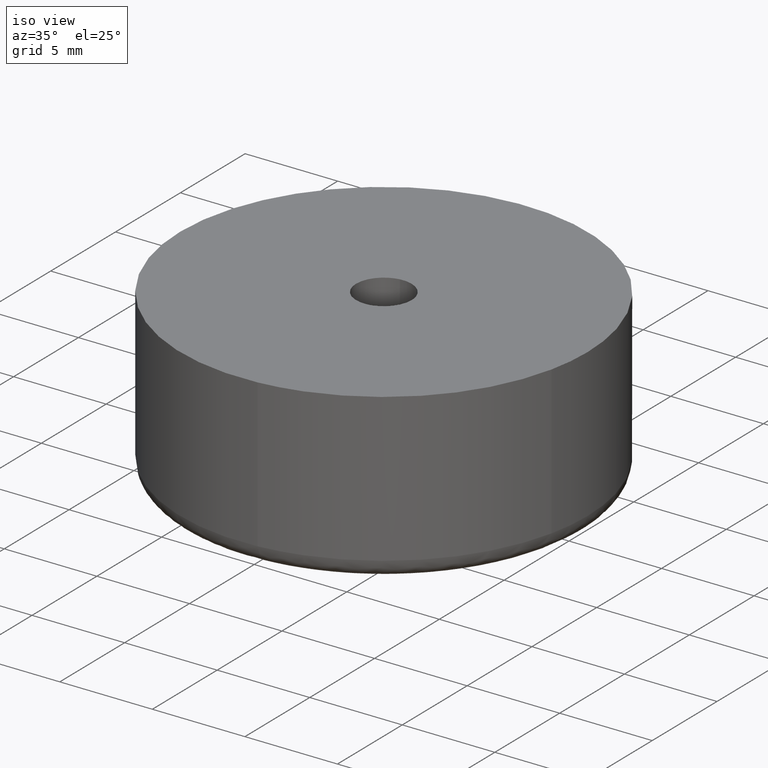
[diagram: clean part render]
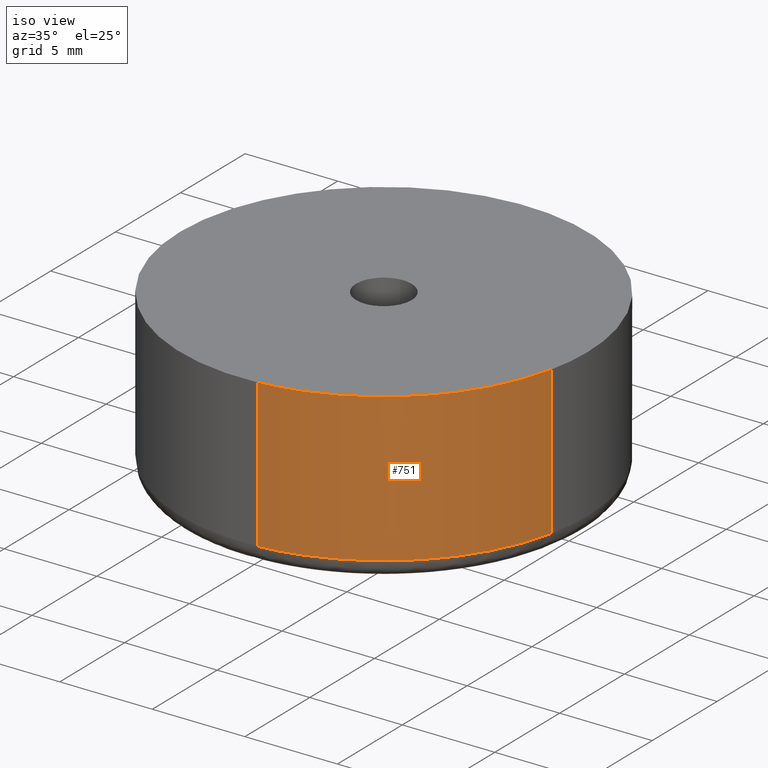
[diagram: same view with one face highlighted and labeled with its STEP entity id]
A machine part, iso view. The second image highlights one B-rep face of the part: STEP entity #751.
In plain terms, the highlighted face is a freeform B-spline surface patch.
Its self-contained STEP definition (entity closure, byte-faithful):
#687=CARTESIAN_POINT('',(10.750597686837729,-2.330096578054378,9.200000000002461));
#688=CARTESIAN_POINT('',(10.743133350859535,-2.363527617774746,9.200000000002461));
#689=CARTESIAN_POINT('',(8.964755347584941,-10.328472636191016,9.200000000002461));
#690=CARTESIAN_POINT('',(0.832066343852315,-10.968529141858580,9.200000000002461));
#691=CARTESIAN_POINT('',(0.801155071843279,-10.970961911725817,9.200000000002467));
#692=CARTESIAN_POINT('',(10.750597686837729,-2.330096578054378,0.794999999894772));
#693=CARTESIAN_POINT('',(10.743133350859535,-2.363527617774746,0.794999999894772));
#694=CARTESIAN_POINT('',(8.964755347584941,-10.328472636191016,0.794999999894772));
#695=CARTESIAN_POINT('',(0.832066343852315,-10.968529141858580,0.794999999894772));
#696=CARTESIAN_POINT('',(0.801155071843279,-10.970961911725817,0.794999999894773));
#704=(BOUNDED_SURFACE()B_SPLINE_SURFACE(2,1,((#687,#692),(#688,#693),(#689,#694),(#690,#695),(#691,#696)),.UNSPECIFIED.,.F.,.F.,.U.)B_SPLINE_SURFACE_WITH_KNOTS((3,1,1,3),(2,2),(0.0,0.072412327815061,14.553348290568170,14.625760497079630),(0.0,8.405000000107691),.UNSPECIFIED.)GEOMETRIC_REPRESENTATION_ITEM()RATIONAL_B_SPLINE_SURFACE(((0.907680205931852,0.907680205931852),(0.906977187955774,0.906977187955774),(0.765685424949238,0.765685424949238),(1.001171694663996,1.001171694663996),(1.002343389327991,1.002343389327991)))REPRESENTATION_ITEM('')SURFACE());
#705=CARTESIAN_POINT('',(10.735658999564700,-2.397003513767527,0.999999999999981));
#706=VERTEX_POINT('',#705);
#707=CARTESIAN_POINT('',(0.863043667407032,-10.966091173618230,1.000000000000017));
#708=VERTEX_POINT('',#707);
#709=CARTESIAN_POINT('',(10.735658999564698,-2.397003513767527,0.999999999999981));
#710=CARTESIAN_POINT('',(8.964759803320055,-10.328477032398068,1.0));
#711=CARTESIAN_POINT('',(0.863043667407032,-10.966091173618224,1.000000000000017));
#719=(BOUNDED_CURVE()B_SPLINE_CURVE(2,(#709,#710,#711),.UNSPECIFIED.,.F.,.U.)B_SPLINE_CURVE_WITH_KNOTS((3,3),(0.537286560370751,0.736331400453952),.UNSPECIFIED.)CURVE()GEOMETRIC_REPRESENTATION_ITEM()RATIONAL_B_SPLINE_CURVE((0.925662740296602,0.762027680026814,0.969723564491107))REPRESENTATION_ITEM(''));
#720=EDGE_CURVE('',#706,#708,#719,.T.);
#721=ORIENTED_EDGE('',*,*,#720,.F.);
#722=CARTESIAN_POINT('',(10.735658980247090,-2.397003600287159,8.999999999999901));
#723=VERTEX_POINT('',#722);
#724=CARTESIAN_POINT('',(10.735658980247090,-2.397003600287159,8.999999999999901));
#725=CARTESIAN_POINT('',(10.735658999564700,-2.397003513767527,0.999999999999981));
#726=QUASI_UNIFORM_CURVE('',1,(#724,#725),.UNSPECIFIED.,.F.,.U.);
#727=EDGE_CURVE('',#723,#706,#726,.T.);
#728=ORIENTED_EDGE('',*,*,#727,.F.);
#729=CARTESIAN_POINT('',(0.863043746158326,-10.966091167420460,8.999999999999901));
#730=VERTEX_POINT('',#729);
#731=CARTESIAN_POINT('',(10.735658980247091,-2.397003600287159,8.999999999999901));
#732=CARTESIAN_POINT('',(8.964759748317437,-10.328476978185243,8.999999999999901));
#733=CARTESIAN_POINT('',(0.863043746158326,-10.966091167420460,8.999999999999901));
#741=(BOUNDED_CURVE()B_SPLINE_CURVE(2,(#731,#732,#733),.UNSPECIFIED.,.F.,.U.)B_SPLINE_CURVE_WITH_KNOTS((3,3),(0.537286561689504,0.736331399222893),.UNSPECIFIED.)CURVE()GEOMETRIC_REPRESENTATION_ITEM()RATIONAL_B_SPLINE_CURVE((0.925662738128303,0.762027682414940,0.969723561921979))REPRESENTATION_ITEM(''));
#742=EDGE_CURVE('',#723,#730,#741,.T.);
#743=ORIENTED_EDGE('',*,*,#742,.T.);
#744=CARTESIAN_POINT('',(0.863043746158326,-10.966091167420460,8.999999999999901));
#745=CARTESIAN_POINT('',(0.863043667407032,-10.966091173618230,1.000000000000017));
#746=QUASI_UNIFORM_CURVE('',1,(#744,#745),.UNSPECIFIED.,.F.,.U.);
#747=EDGE_CURVE('',#730,#708,#746,.T.);
#748=ORIENTED_EDGE('',*,*,#747,.T.);
#749=EDGE_LOOP('',(#721,#728,#743,#748));
#750=FACE_OUTER_BOUND('',#749,.T.);
#751=ADVANCED_FACE('',(#750),#704,.T.);